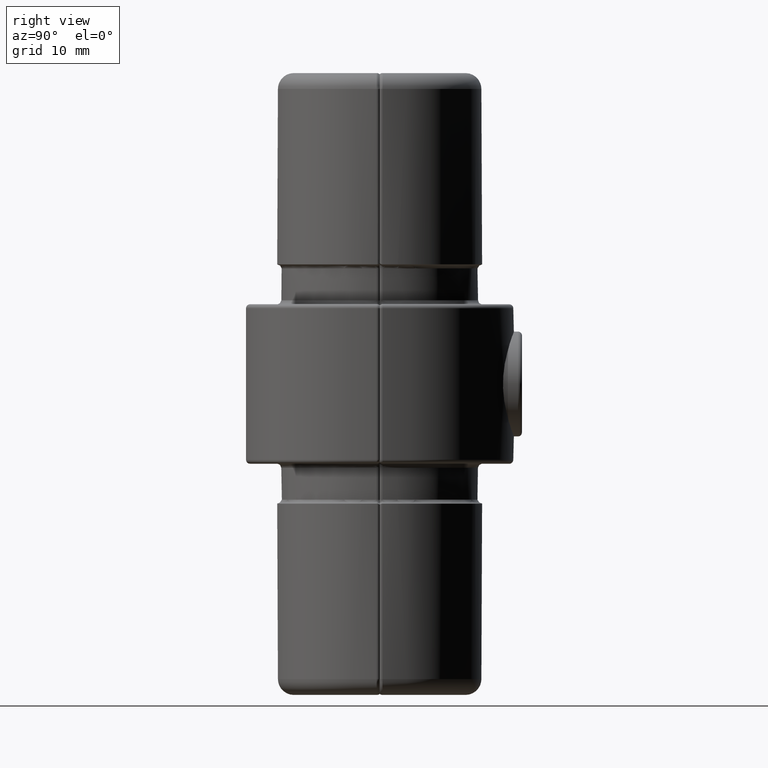
[diagram: clean part render]
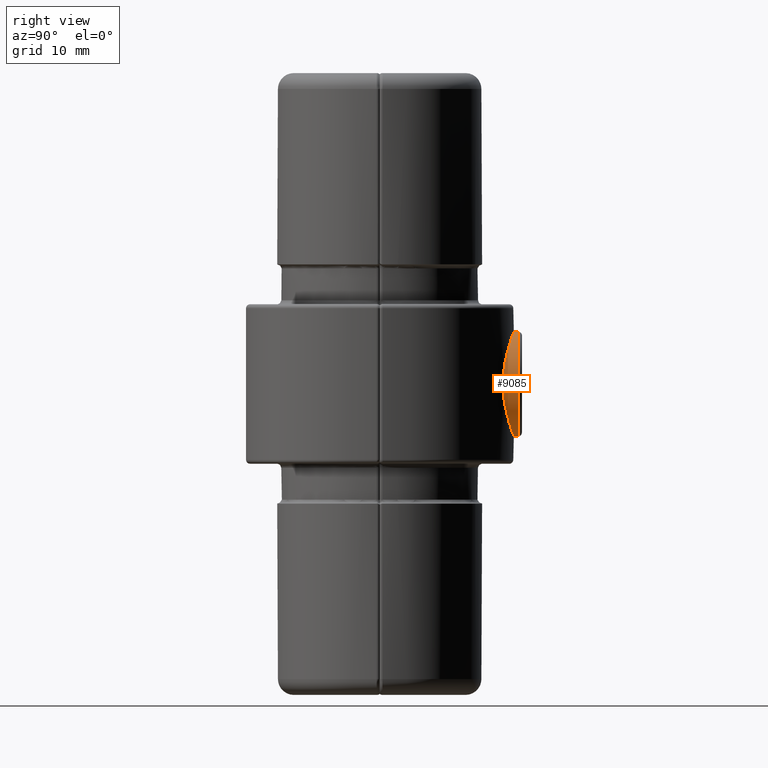
[diagram: same view with one face highlighted and labeled with its STEP entity id]
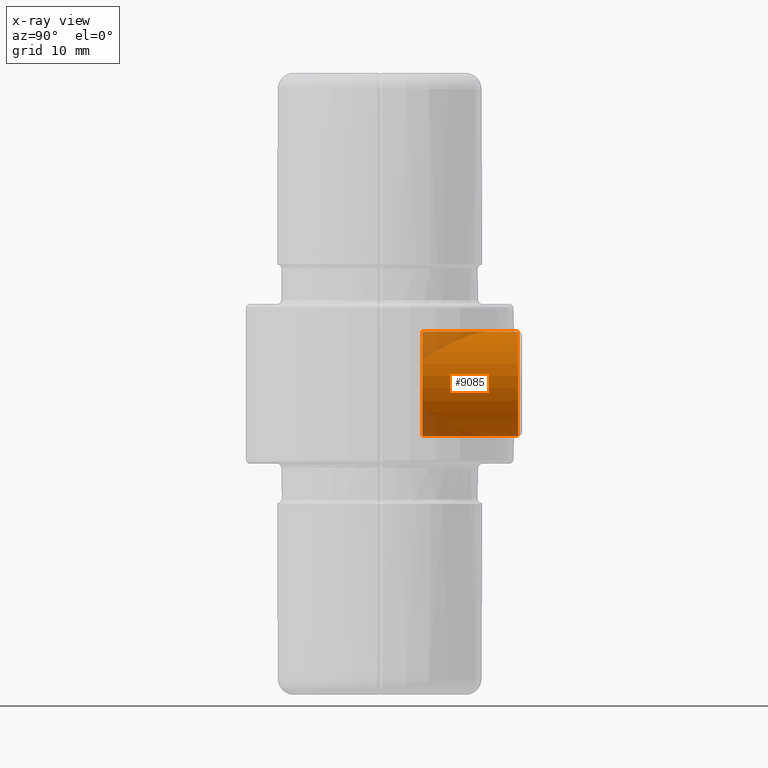
[diagram: x-ray of the same camera — body ghosted, the highlighted face saturated]
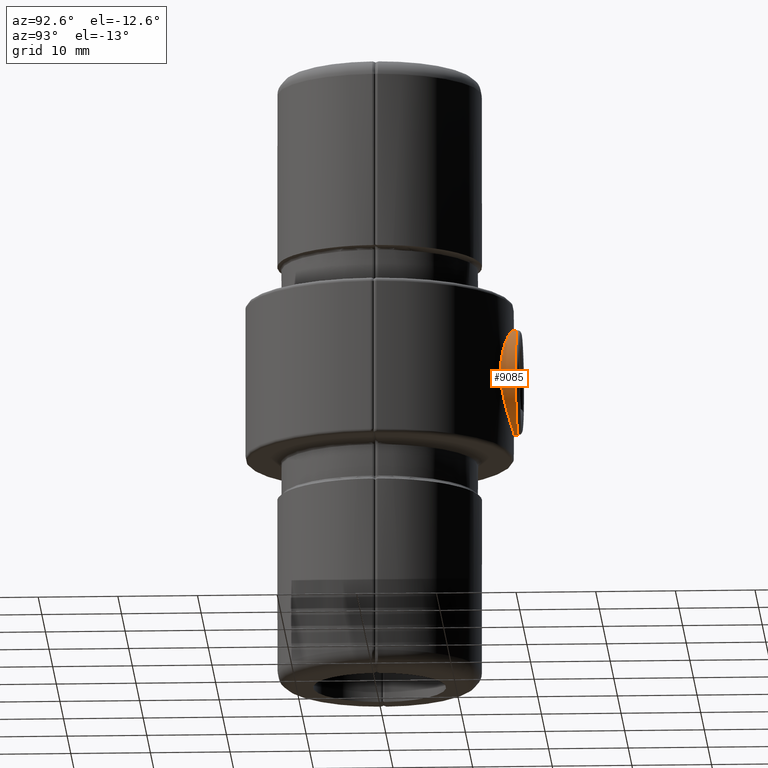
[diagram: same view with one face highlighted and labeled with its STEP entity id]
A machine part, right view. The second image highlights one B-rep face of the part: STEP entity #9085.
The next image is the same camera in x-ray: the body ghosted, the highlighted face saturated — about 15% of this face is hidden behind the body in this view.
A second angle (auxiliary view) of the same face is appended — the face is thin or edge-on in the first view.
In plain terms, the highlighted cylindrical surface (bore or boss wall) has radius 6.58 mm, axis along (0, -1, -0).
Its self-contained STEP definition (entity closure, byte-faithful):
#104 = FACE_OUTER_BOUND ( 'NONE', #6925, .T. ) ;
#203 = CARTESIAN_POINT ( 'NONE',  ( 0.000000000000000000, 12.49999999999999822, 0.000000000000000000 ) ) ;
#333 = EDGE_LOOP ( 'NONE', ( #9004 ) ) ;
#896 = AXIS2_PLACEMENT_3D ( 'NONE', #4138, #7103, #9373 ) ;
#1872 = CIRCLE ( 'NONE', #7725, 6.580000000000000071 ) ;
#2380 = DIRECTION ( 'NONE',  ( -0.000000000000000000, -1.000000000000000000, -0.000000000000000000 ) ) ;
#2861 = CARTESIAN_POINT ( 'NONE',  ( 0.000000000000000000, 0.5000000000000004441, 6.580000000000000071 ) ) ;
#3228 = DIRECTION ( 'NONE',  ( 0.000000000000000000, 0.000000000000000000, 1.000000000000000000 ) ) ;
#3648 = CYLINDRICAL_SURFACE ( 'NONE', #4541, 6.580000000000000071 ) ;
#3905 = DIRECTION ( 'NONE',  ( -0.000000000000000000, -1.000000000000000000, -0.000000000000000000 ) ) ;
#4138 = CARTESIAN_POINT ( 'NONE',  ( 0.000000000000000000, 0.5000000000000004441, 0.000000000000000000 ) ) ;
#4215 = CARTESIAN_POINT ( 'NONE',  ( 0.000000000000000000, 12.49999999999999822, 6.580000000000000071 ) ) ;
#4328 = ORIENTED_EDGE ( 'NONE', *, *, #7741, .T. ) ;
#4541 = AXIS2_PLACEMENT_3D ( 'NONE', #7723, #3905, #5480 ) ;
#4942 = VERTEX_POINT ( 'NONE', #4215 ) ;
#5480 = DIRECTION ( 'NONE',  ( 0.000000000000000000, 0.000000000000000000, -1.000000000000000000 ) ) ;
#5900 = FACE_OUTER_BOUND ( 'NONE', #333, .T. ) ;
#6925 = EDGE_LOOP ( 'NONE', ( #4328 ) ) ;
#7103 = DIRECTION ( 'NONE',  ( 0.000000000000000000, 1.000000000000000000, 0.000000000000000000 ) ) ;
#7723 = CARTESIAN_POINT ( 'NONE',  ( 0.000000000000000000, 13.00000000000000000, 0.000000000000000000 ) ) ;
#7725 = AXIS2_PLACEMENT_3D ( 'NONE', #203, #2380, #3228 ) ;
#7741 = EDGE_CURVE ( 'NONE', #4942, #4942, #1872, .T. ) ;
#8204 = VERTEX_POINT ( 'NONE', #2861 ) ;
#9004 = ORIENTED_EDGE ( 'NONE', *, *, #9227, .T. ) ;
#9085 = ADVANCED_FACE ( 'NONE', ( #5900, #104 ), #3648, .T. ) ;
#9086 = CIRCLE ( 'NONE', #896, 6.580000000000000071 ) ;
#9227 = EDGE_CURVE ( 'NONE', #8204, #8204, #9086, .T. ) ;
#9373 = DIRECTION ( 'NONE',  ( 0.000000000000000000, 0.000000000000000000, 1.000000000000000000 ) ) ;